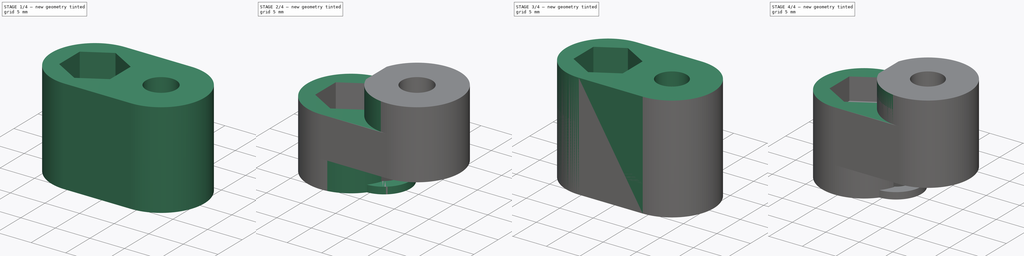
[diagram: build sequence overview — one tinted view per stage of 4, left to right]
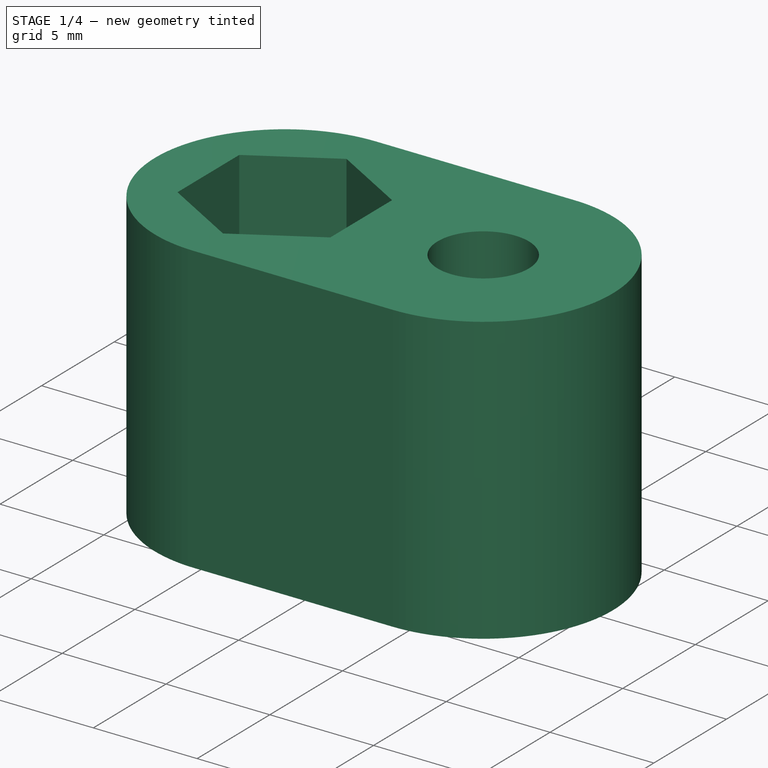
[diagram: stage 1 of 4 — iso view after this stage's code; geometry added in this stage tinted green]
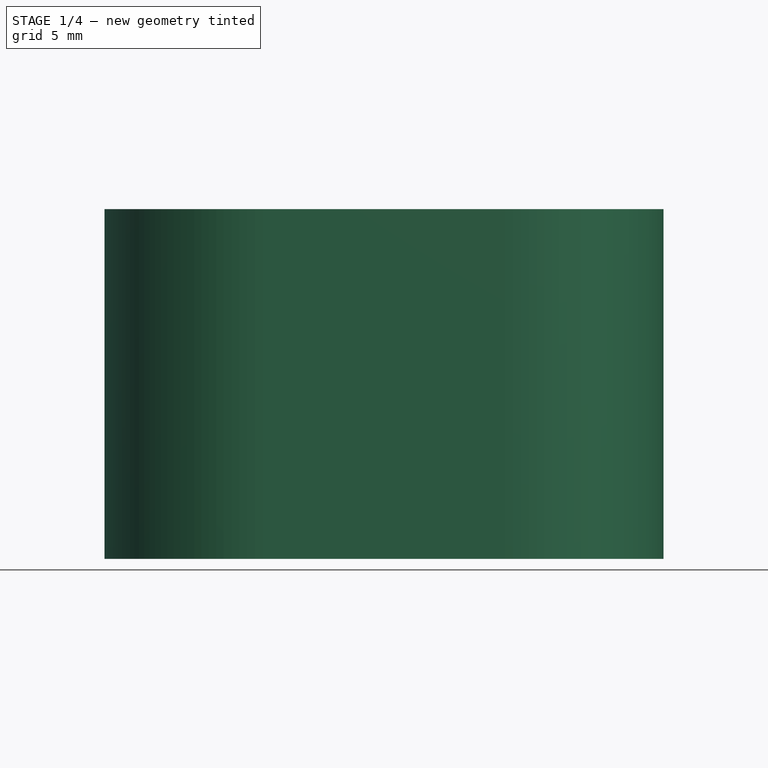
[diagram: stage 1 of 4 — front view after this stage's code; geometry added in this stage tinted green]
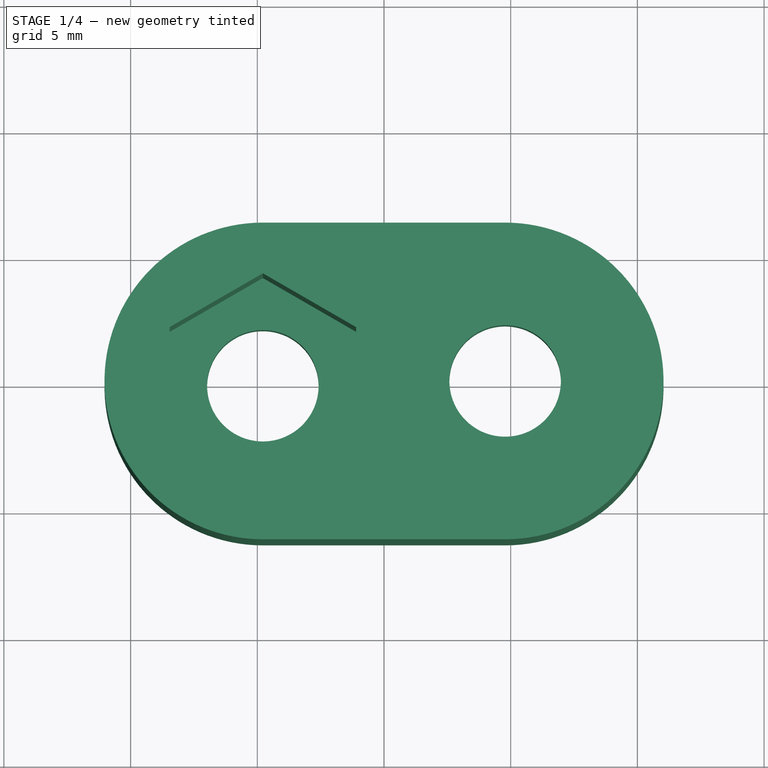
[diagram: stage 1 of 4 — top view after this stage's code; geometry added in this stage tinted green]
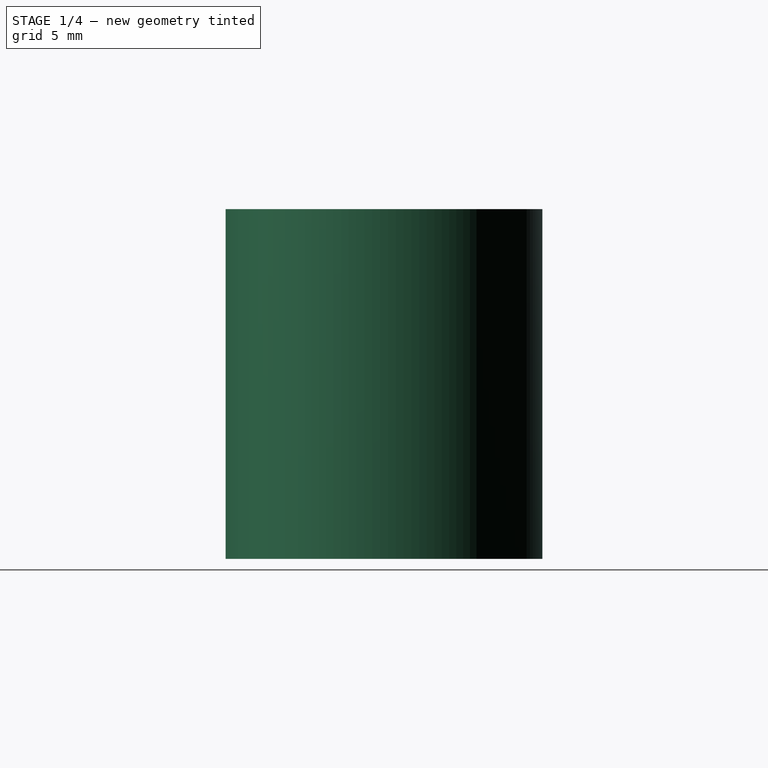
[diagram: stage 1 of 4 — right view after this stage's code; geometry added in this stage tinted green]
FCSTD DOCUMENT  (FreeCAD 0.18.4R)
Label: Silencer
License: All rights reserved
LicenseURL: http://en.wikipedia.org/wiki/All_rights_reserved
objects: Sketcher::SketchObject×13, PartDesign::Pocket×8, PartDesign::Pad×3, PartDesign::Body×3, Spreadsheet::Sheet×2, App::Part×1
note: 38 computed .brp shape members not serialized (recipe doc carries the construction recipe); baked Part::Feature solids carry a one-line shape summary decoded from their .brp

FEATURE [PartDesign::Body] Body001
  Group = -> [Sketch006,Pad001]
  Origin = -> Origin002
  Tip = -> Pad001
FEATURE [Sketcher::SketchObject] Sketch007  label="Template001"
  MapMode = 5
  Support = -> [XY_Plane001]
  expr: Constraints[38] = Params.NutDistanceH
  expr: Constraints[51] = Screws.M4Radius
  expr: Constraints[47] = Constraints.R1 + 2mm
  expr: Constraints.R1 = Screws.M4NutRadius
  sketch-geometry (20):
    g0: LineSegment StartX=-1.1 StartY=2.125 StartZ=0 EndX=-4.78061 EndY=4.25 EndZ=0
    g1: LineSegment StartX=-4.78061 StartY=4.25 StartZ=0 EndX=-8.46122 EndY=2.125 EndZ=0
    g2: LineSegment StartX=-8.46122 StartY=2.125 StartZ=0 EndX=-8.46122 EndY=-2.125 EndZ=0
    g3: LineSegment StartX=-8.46122 StartY=-2.125 StartZ=0 EndX=-4.78061 EndY=-4.25 EndZ=0
    g4: LineSegment StartX=-4.78061 StartY=-4.25 StartZ=0 EndX=-1.1 EndY=-2.125 EndZ=0
    g5: LineSegment StartX=-1.1 StartY=-2.125 StartZ=0 EndX=-1.1 EndY=2.125 EndZ=0
    g6: Circle CenterX=-4.78061 CenterY=0 CenterZ=0 NormalX=0 NormalY=0 NormalZ=1 AngleXU=0 Radius=4.25
    g7: LineSegment StartX=8.46122 StartY=-2.125 StartZ=0 EndX=8.46122 EndY=2.125 EndZ=0
    g8: LineSegment StartX=8.46122 StartY=2.125 StartZ=0 EndX=4.78061 EndY=4.25 EndZ=0
    g9: LineSegment StartX=4.78061 StartY=4.25 StartZ=0 EndX=1.1 EndY=2.125 EndZ=0
    g10: LineSegment StartX=1.1 StartY=2.125 StartZ=0 EndX=1.1 EndY=-2.125 EndZ=0
    g11: LineSegment StartX=1.1 StartY=-2.125 StartZ=0 EndX=4.78061 EndY=-4.25 EndZ=0
    g12: LineSegment StartX=4.78061 StartY=-4.25 StartZ=0 EndX=8.46122 EndY=-2.125 EndZ=0
    g13: Circle CenterX=4.78061 CenterY=0 CenterZ=0 NormalX=0 NormalY=0 NormalZ=1 AngleXU=0 Radius=4.25
    g14: ArcOfCircle CenterX=-4.78061 CenterY=0 CenterZ=0 NormalX=0 NormalY=0 NormalZ=1 AngleXU=0 Radius=6.25 StartAngle=1.5708 EndAngle=4.71239
    g15: ArcOfCircle CenterX=4.78061 CenterY=0 CenterZ=0 NormalX=0 NormalY=0 NormalZ=1 AngleXU=0 Radius=6.25 StartAngle=4.71239 EndAngle=7.85398
    g16: LineSegment StartX=-4.78061 StartY=-6.25 StartZ=0 EndX=4.78061 EndY=-6.25 EndZ=0
    g17: LineSegment StartX=-4.78061 StartY=6.25 StartZ=0 EndX=4.78061 EndY=6.25 EndZ=0
    g18: Circle CenterX=-4.78061 CenterY=0 CenterZ=0 NormalX=0 NormalY=0 NormalZ=1 AngleXU=0 Radius=2.2
    g19: Circle CenterX=4.78061 CenterY=0 CenterZ=0 NormalX=0 NormalY=0 NormalZ=1 AngleXU=0 Radius=2.2
  constraints (45):
    c: Coincident(g0,g1)
    c: Coincident(g1,g2)
    c: Coincident(g2,g3)
    c: Coincident(g3,g4)
    c: Coincident(g4,g5)
    c: Coincident(g5,g0)
    c: Equal(g0, g1-g5) x5
    c: PointOnObject(g0,g6)
    c: PointOnObject(g1,g6)
    c: PointOnObject(g2,g6)
    c: PointOnObject(g3,g6)
    c: PointOnObject(g4,g6)
    c: PointOnObject(g5,g6)
    c: Radius(g6) = 4.25  'R1'
    c: Vertical(g2)
    c: Coincident(g7,g8)
    c: Coincident(g8,g9)
    c: Coincident(g9,g10)
    c: Coincident(g10,g11)
    c: Coincident(g11,g12)
    c: Coincident(g12,g7)
    c: Equal(g7, g8-g12) x5
    c: PointOnObject(g7,g13)
    c: PointOnObject(g8,g13)
    c: PointOnObject(g9,g13)
    c: PointOnObject(g10,g13)
    c: PointOnObject(g11,g13)
    c: PointOnObject(g12,g13)
    c: Vertical(g10)
    c: Equal(g13,g6)
    c: DistanceX(g0,g9) = 2.2
    c: Tangent(g14,g17) = 1.5708
    c: Tangent(g14,g16) = -1.5708
    c: Tangent(g16,g15) = -1.5708
    c: Tangent(g17,g15) = 1.5708
    c: Horizontal(g16)
    c: Equal(g14,g15)
    c: Coincident(g14,g6)
    c: Coincident(g13,g15)
    c: Radius(g14) = 6.25
    c: Coincident(g18,g14)
    c: Coincident(g19,g15)
    c: Equal(g19,g18)
    c: Radius(g18) = 2.2
    c: Symmetric(g14,g15,g-1)
FEATURE [Sketcher::SketchObject] Sketch008
  ExternalGeometry = -> [Sketch007]
  MapMode = 5
  Support = -> [XY_Plane001]
  sketch-geometry (6):
    g0: ArcOfCircle CenterX=-4.78061 CenterY=0 CenterZ=0 NormalX=0 NormalY=0 NormalZ=1 AngleXU=0 Radius=6.25 StartAngle=1.5708 EndAngle=4.71239
    g1: ArcOfCircle CenterX=4.78061 CenterY=0 CenterZ=0 NormalX=0 NormalY=0 NormalZ=1 AngleXU=0 Radius=6.25 StartAngle=4.71239 EndAngle=7.85398
    g2: LineSegment StartX=-4.78061 StartY=-6.25 StartZ=0 EndX=4.78061 EndY=-6.25 EndZ=0
    g3: LineSegment StartX=-4.78061 StartY=6.25 StartZ=0 EndX=4.78061 EndY=6.25 EndZ=0
    g4: Circle CenterX=-4.78061 CenterY=0 CenterZ=0 NormalX=0 NormalY=0 NormalZ=1 AngleXU=0 Radius=2.2
    g5: Circle CenterX=4.78061 CenterY=0 CenterZ=0 NormalX=0 NormalY=0 NormalZ=1 AngleXU=0 Radius=2.2
  constraints (12):
    c: Tangent(g0,g3) = 1.5708
    c: Tangent(g0,g2) = -1.5708
    c: Tangent(g2,g1) = -1.5708
    c: Tangent(g3,g1) = 1.5708
    c: Horizontal(g2)
    c: Coincident(g0,g-6)
    c: Coincident(g1,g-5)
    c: Equal(g0,g-6)
    c: Coincident(g4,g0)
    c: Coincident(g5,g1)
    c: Equal(g5,g-4)
    c: Equal(g4,g-3)
FEATURE [PartDesign::Pad] Pad002
  Length = 13.8
  Length2 = 100
  Profile = -> Sketch008
  Type = 0
  expr: Length = Params.SurfaceThickness * 2 + Screws.M4NutHeight * 2 + Params.NutDistanceV
FEATURE [Sketcher::SketchObject] Sketch009
  AttachmentOffset = pos=(0,0,13.8) rot=(0,0,1;0rad)
  ExternalGeometry = -> [Sketch007]
  MapMode = 5
  Placement = pos=(0,0,13.8) rot=(0,0,1;0rad)
  Support = -> [XY_Plane001]
  expr: AttachmentOffset.Base.z = Pad002.Length
  sketch-geometry (7):
    g0: LineSegment StartX=-4.78061 StartY=4.25 StartZ=0 EndX=-8.46122 EndY=2.125 EndZ=0
    g1: LineSegment StartX=-8.46122 StartY=2.125 StartZ=0 EndX=-8.46122 EndY=-2.125 EndZ=0
    g2: LineSegment StartX=-8.46122 StartY=-2.125 StartZ=0 EndX=-4.78061 EndY=-4.25 EndZ=0
    g3: LineSegment StartX=-4.78061 StartY=-4.25 StartZ=0 EndX=-1.1 EndY=-2.125 EndZ=0
    g4: LineSegment StartX=-1.1 StartY=-2.125 StartZ=0 EndX=-1.1 EndY=2.125 EndZ=0
    g5: LineSegment StartX=-1.1 StartY=2.125 StartZ=0 EndX=-4.78061 EndY=4.25 EndZ=0
    g6: Circle [constr] CenterX=-4.78061 CenterY=0 CenterZ=0 NormalX=0 NormalY=0 NormalZ=1 AngleXU=0 Radius=4.25
  constraints (15):
    c: Coincident(g0,g1)
    c: Coincident(g1,g2)
    c: Coincident(g2,g3)
    c: Coincident(g3,g4)
    c: Coincident(g4,g5)
    c: Coincident(g5,g0)
    c: Equal(g0, g1-g5) x5
    c: PointOnObject(g0,g6)
    c: PointOnObject(g1,g6)
    c: PointOnObject(g2,g6)
    c: PointOnObject(g3,g6)
    c: PointOnObject(g4,g6)
    c: PointOnObject(g5,g6)
    c: Coincident(g6,g-3)
    c: Coincident(g0,g-4)
FEATURE [PartDesign::Pocket] Pocket004
  BaseFeature = -> Pad002
  Length = 10.8
  Length2 = 100
  Profile = -> Sketch009
  Type = 0
  expr: Length = Pad002.Length - Params.SurfaceThickness
FEATURE [Sketcher::SketchObject] Sketch010
  AttachmentOffset = pos=(0,0,10.8) rot=(0,0,1;0rad)
  ExternalGeometry = -> [Sketch007]
  MapMode = 5
  Placement = pos=(0,0,10.8) rot=(0,0,1;0rad)
  Support = -> [XY_Plane001]
  expr: AttachmentOffset.Base.z = Pad002.Length - Params.SurfaceThickness
  sketch-geometry (7):
    g0: LineSegment StartX=8.46122 StartY=2.125 StartZ=0 EndX=4.78061 EndY=4.25 EndZ=0
    g1: LineSegment StartX=4.78061 StartY=4.25 StartZ=0 EndX=1.1 EndY=2.125 EndZ=0
    g2: LineSegment StartX=1.1 StartY=2.125 StartZ=0 EndX=1.1 EndY=-2.125 EndZ=0
    g3: LineSegment StartX=1.1 StartY=-2.125 StartZ=0 EndX=4.78061 EndY=-4.25 EndZ=0
    g4: LineSegment StartX=4.78061 StartY=-4.25 StartZ=0 EndX=8.46122 EndY=-2.125 EndZ=0
    g5: LineSegment StartX=8.46122 StartY=-2.125 StartZ=0 EndX=8.46122 EndY=2.125 EndZ=0
    g6: Circle [constr] CenterX=4.78061 CenterY=0 CenterZ=0 NormalX=0 NormalY=0 NormalZ=1 AngleXU=0 Radius=4.25
  constraints (15):
    c: Coincident(g0,g1)
    c: Coincident(g1,g2)
    c: Coincident(g2,g3)
    c: Coincident(g3,g4)
    c: Coincident(g4,g5)
    c: Coincident(g5,g0)
    c: Equal(g0, g1-g5) x5
    c: PointOnObject(g0,g6)
    c: PointOnObject(g1,g6)
    c: PointOnObject(g2,g6)
    c: PointOnObject(g3,g6)
    c: PointOnObject(g4,g6)
    c: PointOnObject(g5,g6)
    c: Coincident(g6,g-3)
    c: Coincident(g5,g-4)
FEATURE [PartDesign::Pocket] Pocket005
  BaseFeature = -> Pocket004
  Length = 3.3
  Length2 = 100
  Profile = -> Sketch010
  Type = 1
  expr: Length = Screws.M4NutHeight
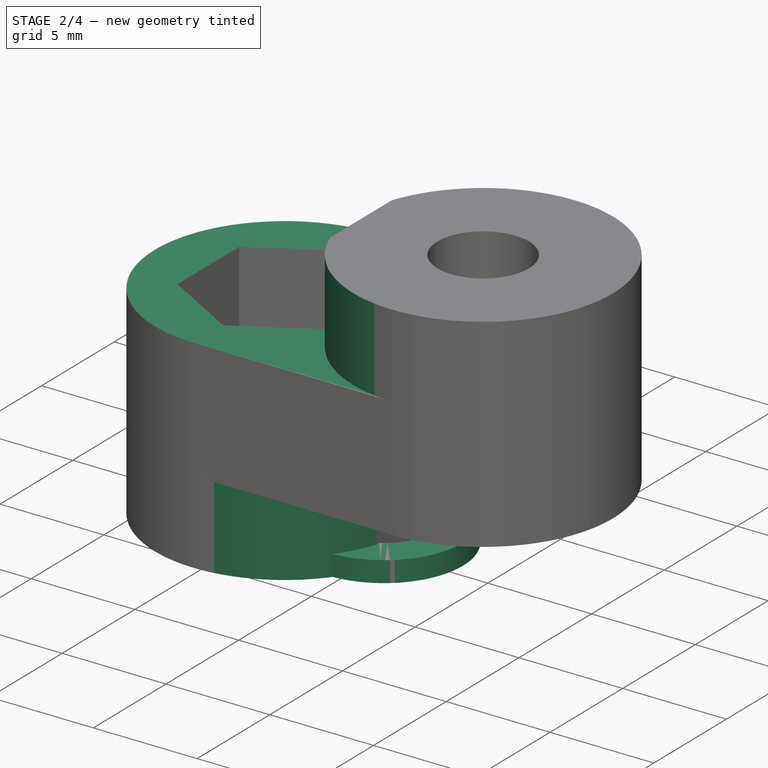
[diagram: stage 2 of 4 — iso view after this stage's code; geometry added in this stage tinted green]
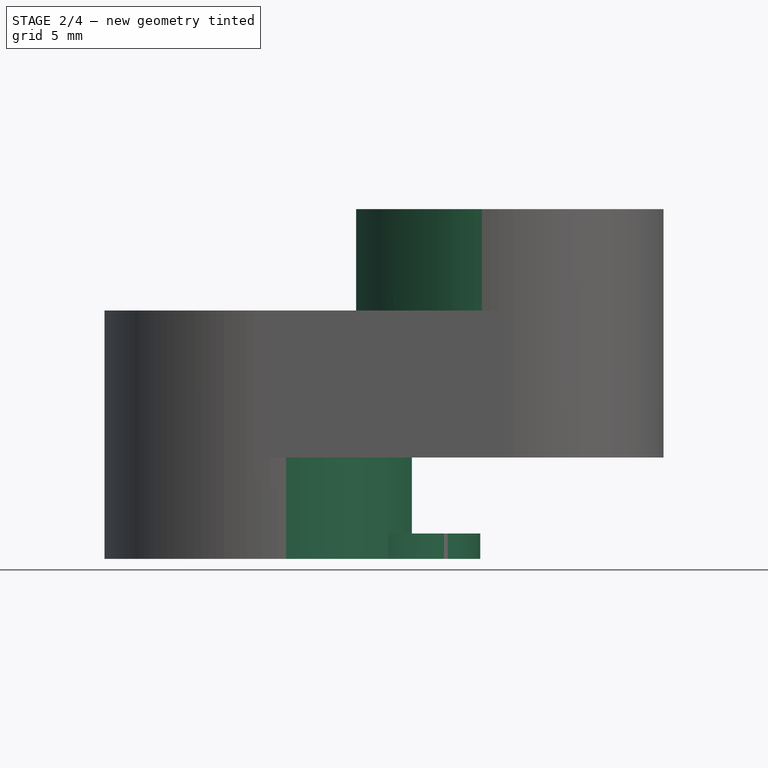
[diagram: stage 2 of 4 — front view after this stage's code; geometry added in this stage tinted green]
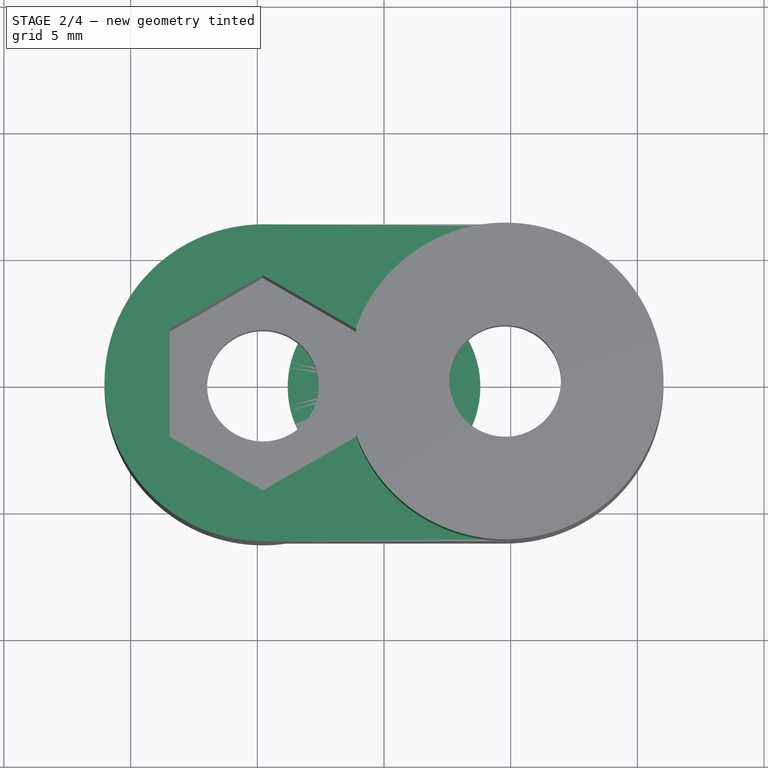
[diagram: stage 2 of 4 — top view after this stage's code; geometry added in this stage tinted green]
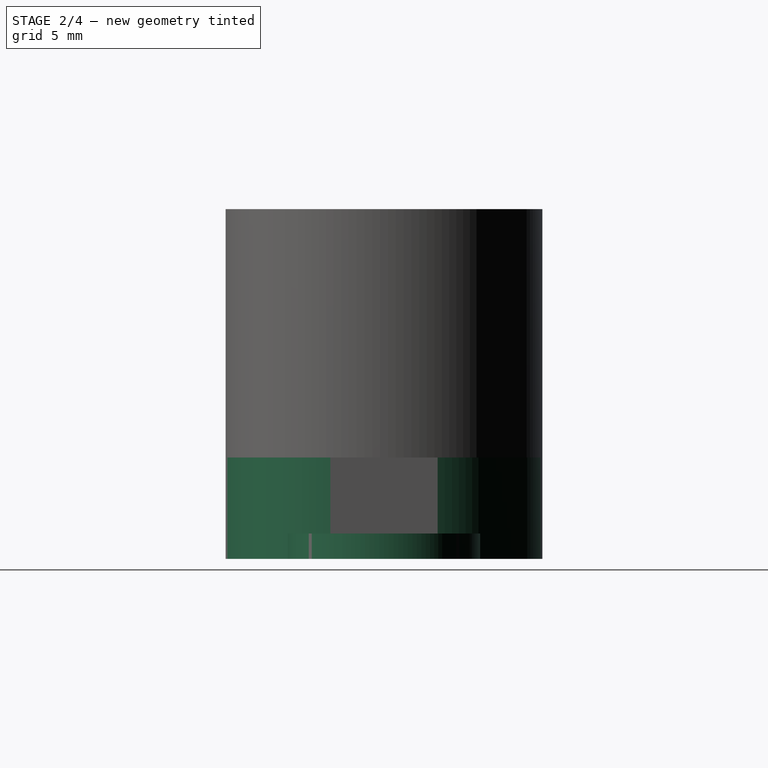
[diagram: stage 2 of 4 — right view after this stage's code; geometry added in this stage tinted green]
FEATURE [PartDesign::Body] Body
  Group = -> [Sketch,Sketch001,Pad,Sketch002,Pocket,Sketch003,Pocket001,Sketch004,Pocket002,Sketch005,Pocket003]
  Origin = -> Origin001
  Tip = -> Pocket003
FEATURE [App::Part] Part
  Group = -> [Body]
  Origin = -> Origin
FEATURE [Spreadsheet::Sheet] Spreadsheet  label="Params"
  cells = B2=NutDistanceV; C2(NutDistanceV)==1.2mm; B3=NutDistanceH; C3(NutDistanceH)==2.2mm; B4=NutGap; C4(NutGap)==4mm; B5=SurfaceThickness; C5(SurfaceThickness)==3mm
FEATURE [Sketcher::SketchObject] Sketch006
  MapMode = 5
  Support = -> [XY_Plane002]
  expr: Constraints[3] = Constraints.Ri + 1.6mm
  expr: Constraints.Ri = Screws.M4Radius
  sketch-geometry (2):
    g0: Circle CenterX=0 CenterY=0 CenterZ=0 NormalX=0 NormalY=0 NormalZ=1 AngleXU=0 Radius=2.2
    g1: Circle CenterX=0 CenterY=0 CenterZ=0 NormalX=0 NormalY=0 NormalZ=1 AngleXU=0 Radius=3.8
  constraints (4):
    c: Coincident(g0,g-1)
    c: Coincident(g1,g0)
    c: Radius(g0) = 2.2  'Ri'
    c: Radius(g1) = 3.8
FEATURE [PartDesign::Pad] Pad001
  Length = 1
  Length2 = 100
  Profile = -> Sketch006
  Type = 0
FEATURE [Sketcher::SketchObject] Sketch011
  AttachmentOffset = pos=(0,0,4) rot=(0,0,1;0rad)
  ExternalGeometry = -> [Sketch007]
  MapMode = 5
  Placement = pos=(0,0,4) rot=(0,0,1;0rad)
  Support = -> [XY_Plane001]
  expr: AttachmentOffset.Base.z = Params.NutGap
  sketch-geometry (4):
    g0: ArcOfCircle CenterX=4.78061 CenterY=2e-16 CenterZ=0 NormalX=0 NormalY=0 NormalZ=1 AngleXU=0 Radius=6.25 StartAngle=4.71239 EndAngle=7.85398
    g1: LineSegment StartX=4.78061 StartY=6.25 StartZ=0 EndX=-4.78061 EndY=6.25 EndZ=0
    g2: LineSegment StartX=-4.78061 StartY=-6.25 StartZ=0 EndX=4.78061 EndY=-6.25 EndZ=0
    g3: ArcOfCircle CenterX=-4.78061 CenterY=0 CenterZ=0 NormalX=0 NormalY=0 NormalZ=1 AngleXU=0 Radius=6.25 StartAngle=4.71239 EndAngle=7.85398
  constraints (10):
    c: Coincident(g0,g-3)
    c: Coincident(g0,g-5)
    c: Coincident(g0,g-6)
    c: Coincident(g1,g0)
    c: Coincident(g2,g0)
    c: Coincident(g2,g-6)
    c: Coincident(g1,g-5)
    c: Coincident(g3,g-7)
    c: Coincident(g3,g1)
    c: Coincident(g3,g2)
FEATURE [PartDesign::Pocket] Pocket006
  BaseFeature = -> Pocket005
  Length = 5
  Length2 = 100
  Profile = -> Sketch011
  Type = 1
FEATURE [Sketcher::SketchObject] Sketch012
  AttachmentOffset = pos=(0,0,13.8) rot=(0,0,1;0rad)
  ExternalGeometry = -> [Sketch007]
  MapMode = 5
  Placement = pos=(0,0,13.8) rot=(0,0,1;0rad)
  Support = -> [XY_Plane002]
  expr: AttachmentOffset.Base.z = Pad002.Length
  sketch-geometry (4):
    g0: ArcOfCircle CenterX=-4.78061 CenterY=0 CenterZ=0 NormalX=0 NormalY=0 NormalZ=1 AngleXU=0 Radius=6.25 StartAngle=1.5708 EndAngle=4.71239
    g1: LineSegment StartX=-4.78061 StartY=6.25 StartZ=0 EndX=4.78061 EndY=6.25 EndZ=0
    g2: LineSegment StartX=-4.78061 StartY=-6.25 StartZ=0 EndX=4.78061 EndY=-6.25 EndZ=0
    g3: ArcOfCircle CenterX=4.78061 CenterY=0 CenterZ=0 NormalX=0 NormalY=0 NormalZ=1 AngleXU=0 Radius=6.25 StartAngle=1.5708 EndAngle=4.71239
  constraints (10):
    c: Coincident(g0,g-3)
    c: Coincident(g0,g-4)
    c: Coincident(g0,g-5)
    c: Coincident(g1,g0)
    c: Coincident(g1,g-4)
    c: Coincident(g2,g0)
    c: Coincident(g2,g-5)
    c: Coincident(g3,g-6)
    c: Coincident(g3,g1)
    c: Coincident(g3,g2)
FEATURE [PartDesign::Pocket] Pocket007
  BaseFeature = -> Pocket006
  Length = 4
  Length2 = 100
  Profile = -> Sketch012
  Type = 0
  expr: Length = Params.NutGap
FEATURE [PartDesign::Body] Body002
  Group = -> [Sketch007,Sketch008,Pad002,Sketch009,Pocket004,Sketch010,Pocket005,Sketch011,Pocket006,Sketch012,Pocket007]
  Origin = -> Origin003
  Tip = -> Pocket007
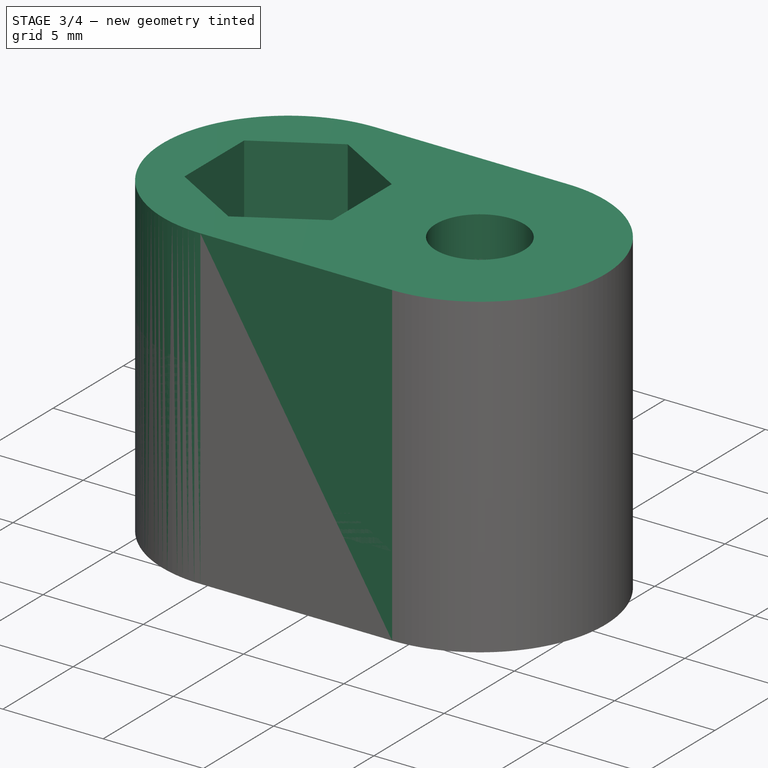
[diagram: stage 3 of 4 — iso view after this stage's code; geometry added in this stage tinted green]
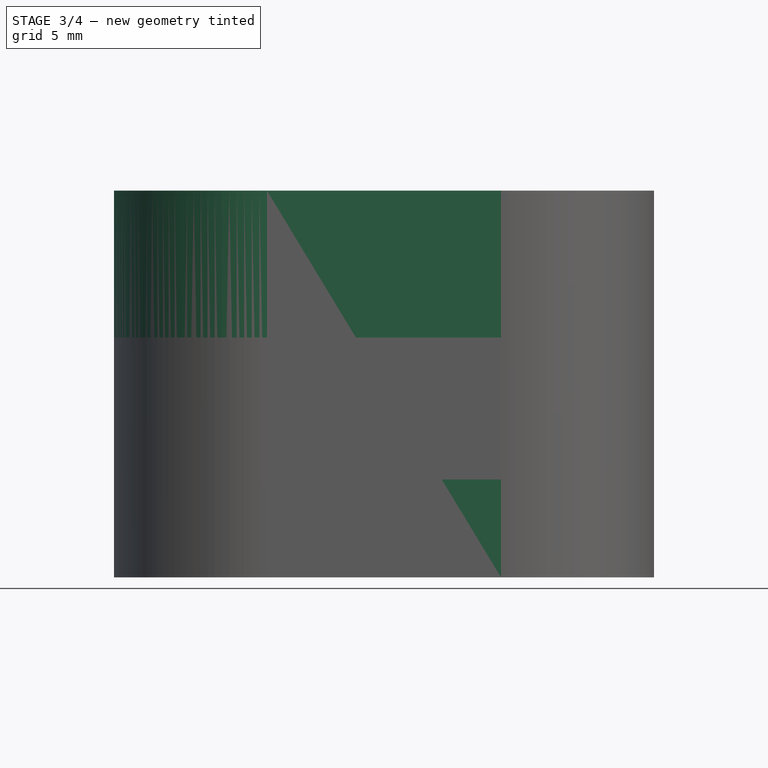
[diagram: stage 3 of 4 — front view after this stage's code; geometry added in this stage tinted green]
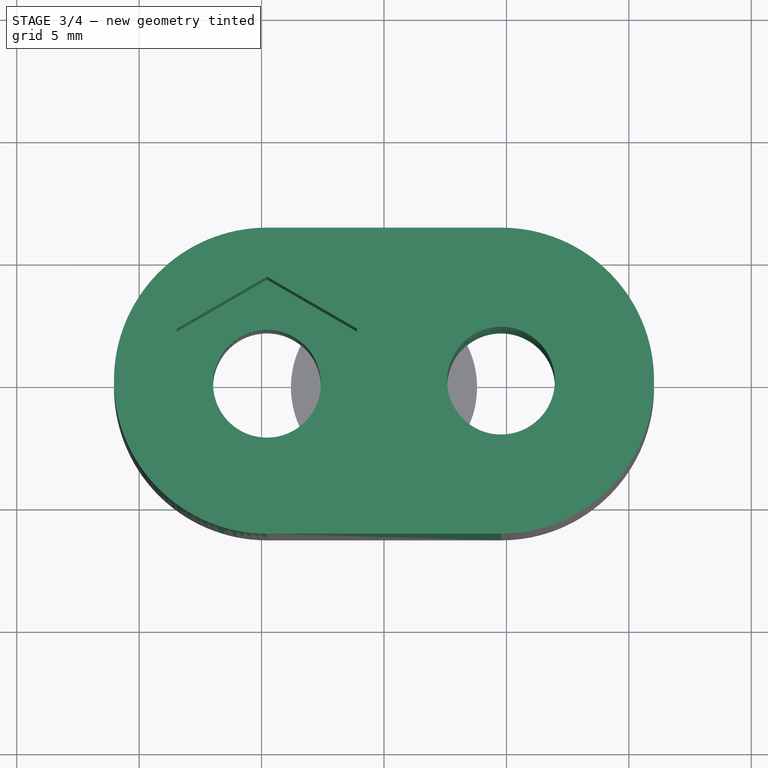
[diagram: stage 3 of 4 — top view after this stage's code; geometry added in this stage tinted green]
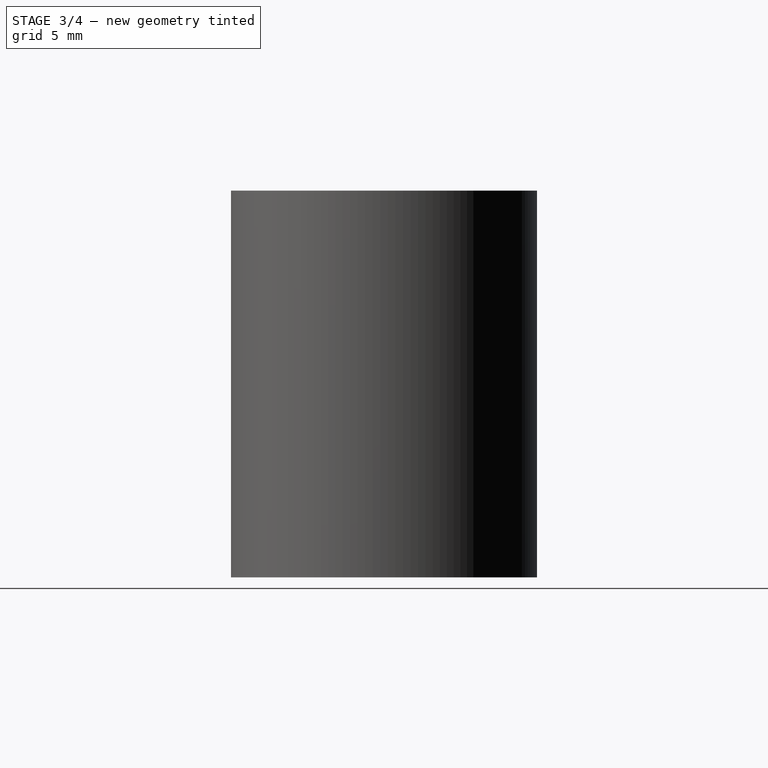
[diagram: stage 3 of 4 — right view after this stage's code; geometry added in this stage tinted green]
FEATURE [Sketcher::SketchObject] Sketch  label="Template"
  MapMode = 5
  Support = -> [XY_Plane001]
  expr: Constraints[38] = Params.NutDistanceH
  expr: Constraints[51] = Screws.M4Radius
  expr: Constraints[47] = Constraints.R1 + 2mm
  expr: Constraints.R1 = Screws.M4NutRadius
  sketch-geometry (20):
    g0: LineSegment StartX=-1.1 StartY=2.125 StartZ=0 EndX=-4.78061 EndY=4.25 EndZ=0
    g1: LineSegment StartX=-4.78061 StartY=4.25 StartZ=0 EndX=-8.46122 EndY=2.125 EndZ=0
    g2: LineSegment StartX=-8.46122 StartY=2.125 StartZ=0 EndX=-8.46122 EndY=-2.125 EndZ=0
    g3: LineSegment StartX=-8.46122 StartY=-2.125 StartZ=0 EndX=-4.78061 EndY=-4.25 EndZ=0
    g4: LineSegment StartX=-4.78061 StartY=-4.25 StartZ=0 EndX=-1.1 EndY=-2.125 EndZ=0
    g5: LineSegment StartX=-1.1 StartY=-2.125 StartZ=0 EndX=-1.1 EndY=2.125 EndZ=0
    g6: Circle CenterX=-4.78061 CenterY=1e-16 CenterZ=0 NormalX=0 NormalY=0 NormalZ=1 AngleXU=0 Radius=4.25
    g7: LineSegment StartX=8.46122 StartY=-2.125 StartZ=0 EndX=8.46122 EndY=2.125 EndZ=0
    g8: LineSegment StartX=8.46122 StartY=2.125 StartZ=0 EndX=4.78061 EndY=4.25 EndZ=0
    g9: LineSegment StartX=4.78061 StartY=4.25 StartZ=0 EndX=1.1 EndY=2.125 EndZ=0
    g10: LineSegment StartX=1.1 StartY=2.125 StartZ=0 EndX=1.1 EndY=-2.125 EndZ=0
    g11: LineSegment StartX=1.1 StartY=-2.125 StartZ=0 EndX=4.78061 EndY=-4.25 EndZ=0
    g12: LineSegment StartX=4.78061 StartY=-4.25 StartZ=0 EndX=8.46122 EndY=-2.125 EndZ=0
    g13: Circle CenterX=4.78061 CenterY=-1e-16 CenterZ=0 NormalX=0 NormalY=0 NormalZ=1 AngleXU=0 Radius=4.25
    g14: ArcOfCircle CenterX=-4.78061 CenterY=1e-16 CenterZ=0 NormalX=0 NormalY=0 NormalZ=1 AngleXU=0 Radius=6.25 StartAngle=1.5708 EndAngle=4.71239
    g15: ArcOfCircle CenterX=4.78061 CenterY=-1e-16 CenterZ=0 NormalX=0 NormalY=0 NormalZ=1 AngleXU=0 Radius=6.25 StartAngle=4.71239 EndAngle=7.85398
    g16: LineSegment StartX=-4.78061 StartY=-6.25 StartZ=0 EndX=4.78061 EndY=-6.25 EndZ=0
    g17: LineSegment StartX=-4.78061 StartY=6.25 StartZ=0 EndX=4.78061 EndY=6.25 EndZ=0
    g18: Circle CenterX=-4.78061 CenterY=1e-16 CenterZ=0 NormalX=0 NormalY=0 NormalZ=1 AngleXU=0 Radius=2.2
    g19: Circle CenterX=4.78061 CenterY=-1e-16 CenterZ=0 NormalX=0 NormalY=0 NormalZ=1 AngleXU=0 Radius=2.2
  constraints (45):
    c: Coincident(g0,g1)
    c: Coincident(g1,g2)
    c: Coincident(g2,g3)
    c: Coincident(g3,g4)
    c: Coincident(g4,g5)
    c: Coincident(g5,g0)
    c: Equal(g0, g1-g5) x5
    c: PointOnObject(g0,g6)
    c: PointOnObject(g1,g6)
    c: PointOnObject(g2,g6)
    c: PointOnObject(g3,g6)
    c: PointOnObject(g4,g6)
    c: PointOnObject(g5,g6)
    c: Radius(g6) = 4.25  'R1'
    c: Vertical(g2)
    c: Coincident(g7,g8)
    c: Coincident(g8,g9)
    c: Coincident(g9,g10)
    c: Coincident(g10,g11)
    c: Coincident(g11,g12)
    c: Coincident(g12,g7)
    c: Equal(g7, g8-g12) x5
    c: PointOnObject(g7,g13)
    c: PointOnObject(g8,g13)
    c: PointOnObject(g9,g13)
    c: PointOnObject(g10,g13)
    c: PointOnObject(g11,g13)
    c: PointOnObject(g12,g13)
    c: Vertical(g10)
    c: Equal(g13,g6)
    c: DistanceX(g0,g9) = 2.2
    c: Tangent(g14,g17) = 1.5708
    c: Tangent(g14,g16) = -1.5708
    c: Tangent(g16,g15) = -1.5708
    c: Tangent(g17,g15) = 1.5708
    c: Horizontal(g16)
    c: Equal(g14,g15)
    c: Coincident(g14,g6)
    c: Coincident(g13,g15)
    c: Radius(g14) = 6.25
    c: Coincident(g18,g14)
    c: Coincident(g19,g15)
    c: Equal(g19,g18)
    c: Radius(g18) = 2.2
    c: Symmetric(g14,g15,g-1)
FEATURE [Spreadsheet::Sheet] Spreadsheet001  label="Screws"
  cells = B2=M3Radius; C2(M3Radius)==1.75mm; B3=M3HeadRadius; C3(M3HeadRadius)==2.95mm; B4=M3HeadHeight; C4(M3HeadHeight)==2.95mm; B5=M3WasherRadius; C5(M3WasherRadius)==3.7mm; B6=M3WasherHeight; C6(M3WasherHeight)==0.5mm; B7=M3NutRadius; C7(M3NutRadius)==3.4mm; B8=M3NutHeight; C8(M3NutHeight)==2.75mm; B9=M3NylocNutHeight; C9(M3NylocNutHeight)==4.1mm; B10=M3NutDuctWidth; C10(M3NutDuctWidth)==5.85mm; B11=M4Radius; C11(M4Radius)==2.2mm; B12=M4HeadRadius; C12(M4HeadRadius)==3.75mm; B13=M4HeadHeight; C13(M4HeadHeight)==4mm; B14=M4WasherRadius; C14(M4WasherRadius)==4.7mm; B15=M4NutRadius; C15(M4NutRadius)==4.25mm; B16=M4NutHeight; C16(M4NutHeight)==3.3mm; B17=M4NutDuctWidth; C17(M4NutDuctWidth)==7.1mm; B18=M5Radius; C18(M5Radius)==2.66mm; B19=M5HeadRadius; C19(M5HeadRadius)==4.5mm; B20=M5HeadHeight; C20(M5HeadHeight)==5mm; B21=M5NutRadius; C21(M5NutRadius)==4.75mm; B22=M5NutHeight; C22(M5NutHeight)==4mm; B24=M6Radius; C24(M6Radius)==3.15mm; B25=M6HeadRadius; C25(M6HeadRadius)==5.5mm; B32=
FEATURE [Sketcher::SketchObject] Sketch001
  ExternalGeometry = -> [Sketch]
  MapMode = 5
  Support = -> [XY_Plane001]
  sketch-geometry (6):
    g0: ArcOfCircle CenterX=-4.78061 CenterY=1e-16 CenterZ=0 NormalX=0 NormalY=0 NormalZ=1 AngleXU=0 Radius=6.25 StartAngle=1.5708 EndAngle=4.71239
    g1: ArcOfCircle CenterX=4.78061 CenterY=-1e-16 CenterZ=0 NormalX=0 NormalY=0 NormalZ=1 AngleXU=0 Radius=6.25 StartAngle=4.71239 EndAngle=7.85398
    g2: LineSegment StartX=-4.78061 StartY=-6.25 StartZ=0 EndX=4.78061 EndY=-6.25 EndZ=0
    g3: LineSegment StartX=-4.78061 StartY=6.25 StartZ=0 EndX=4.78061 EndY=6.25 EndZ=0
    g4: Circle CenterX=-4.78061 CenterY=1e-16 CenterZ=0 NormalX=0 NormalY=0 NormalZ=1 AngleXU=0 Radius=2.2
    g5: Circle CenterX=4.78061 CenterY=-1e-16 CenterZ=0 NormalX=0 NormalY=0 NormalZ=1 AngleXU=0 Radius=2.2
  constraints (12):
    c: Tangent(g0,g3) = 1.5708
    c: Tangent(g0,g2) = -1.5708
    c: Tangent(g2,g1) = -1.5708
    c: Tangent(g3,g1) = 1.5708
    c: Horizontal(g2)
    c: Coincident(g0,g-6)
    c: Coincident(g1,g-5)
    c: Equal(g0,g-6)
    c: Coincident(g4,g0)
    c: Coincident(g5,g1)
    c: Equal(g5,g-4)
    c: Equal(g4,g-3)
FEATURE [PartDesign::Pad] Pad
  Length = 15.8
  Length2 = 100
  Profile = -> Sketch001
  Type = 0
  expr: Length = Screws.M4NutHeight * 2 + Params.NutDistanceV + Params.NutGap * 2
FEATURE [Sketcher::SketchObject] Sketch002
  AttachmentOffset = pos=(0,0,15.8) rot=(0,0,1;0rad)
  ExternalGeometry = -> [Sketch]
  MapMode = 5
  Placement = pos=(0,0,15.8) rot=(0,0,1;0rad)
  Support = -> [XY_Plane001]
  expr: AttachmentOffset.Base.z = Pad.Length
  sketch-geometry (7):
    g0: LineSegment StartX=-4.78061 StartY=4.25 StartZ=0 EndX=-8.46122 EndY=2.125 EndZ=0
    g1: LineSegment StartX=-8.46122 StartY=2.125 StartZ=0 EndX=-8.46122 EndY=-2.125 EndZ=0
    g2: LineSegment StartX=-8.46122 StartY=-2.125 StartZ=0 EndX=-4.78061 EndY=-4.25 EndZ=0
    g3: LineSegment StartX=-4.78061 StartY=-4.25 StartZ=0 EndX=-1.1 EndY=-2.125 EndZ=0
    g4: LineSegment StartX=-1.1 StartY=-2.125 StartZ=0 EndX=-1.1 EndY=2.125 EndZ=0
    g5: LineSegment StartX=-1.1 StartY=2.125 StartZ=0 EndX=-4.78061 EndY=4.25 EndZ=0
    g6: Circle [constr] CenterX=-4.78061 CenterY=1e-16 CenterZ=0 NormalX=0 NormalY=0 NormalZ=1 AngleXU=0 Radius=4.25
  constraints (15):
    c: Coincident(g0,g1)
    c: Coincident(g1,g2)
    c: Coincident(g2,g3)
    c: Coincident(g3,g4)
    c: Coincident(g4,g5)
    c: Coincident(g5,g0)
    c: Equal(g0, g1-g5) x5
    c: PointOnObject(g0,g6)
    c: PointOnObject(g1,g6)
    c: PointOnObject(g2,g6)
    c: PointOnObject(g3,g6)
    c: PointOnObject(g4,g6)
    c: PointOnObject(g5,g6)
    c: Coincident(g6,g-3)
    c: Coincident(g0,g-4)
FEATURE [PartDesign::Pocket] Pocket
  BaseFeature = -> Pad
  Length = 7.3
  Length2 = 100
  Profile = -> Sketch002
  Type = 0
  expr: Length = Screws.M4NutHeight + Params.NutGap
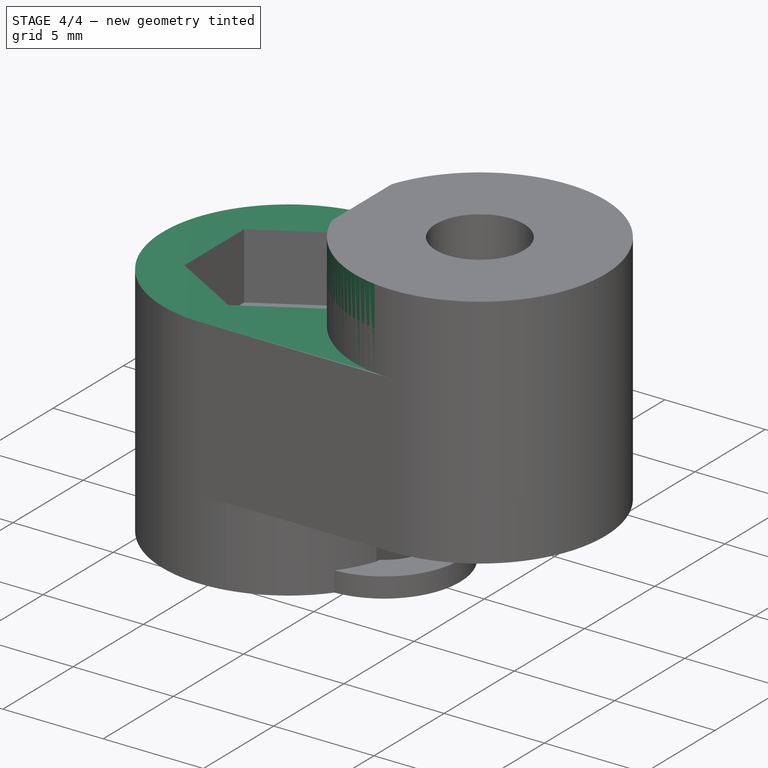
[diagram: stage 4 of 4 — iso view after this stage's code; geometry added in this stage tinted green]
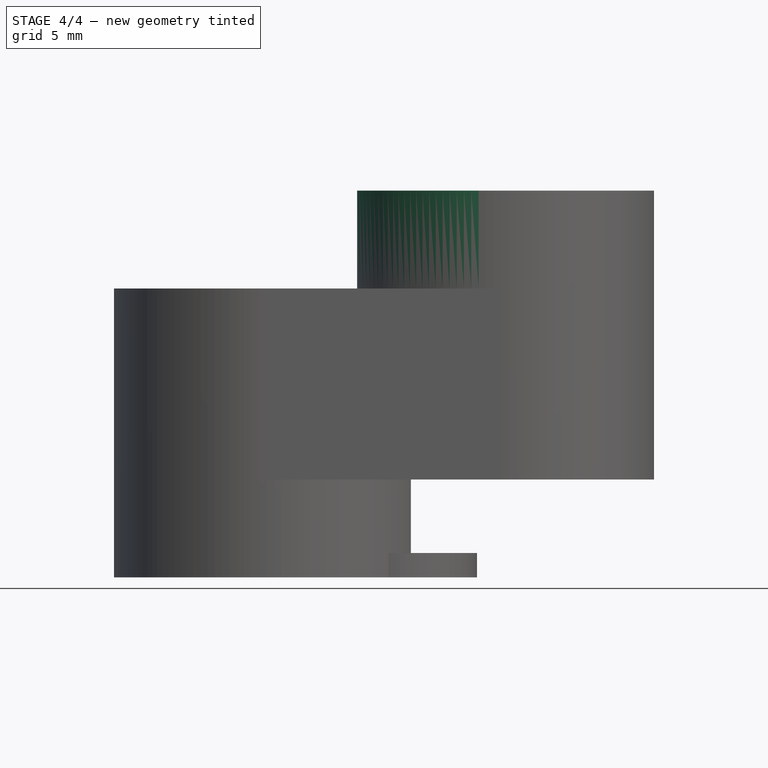
[diagram: stage 4 of 4 — front view after this stage's code; geometry added in this stage tinted green]
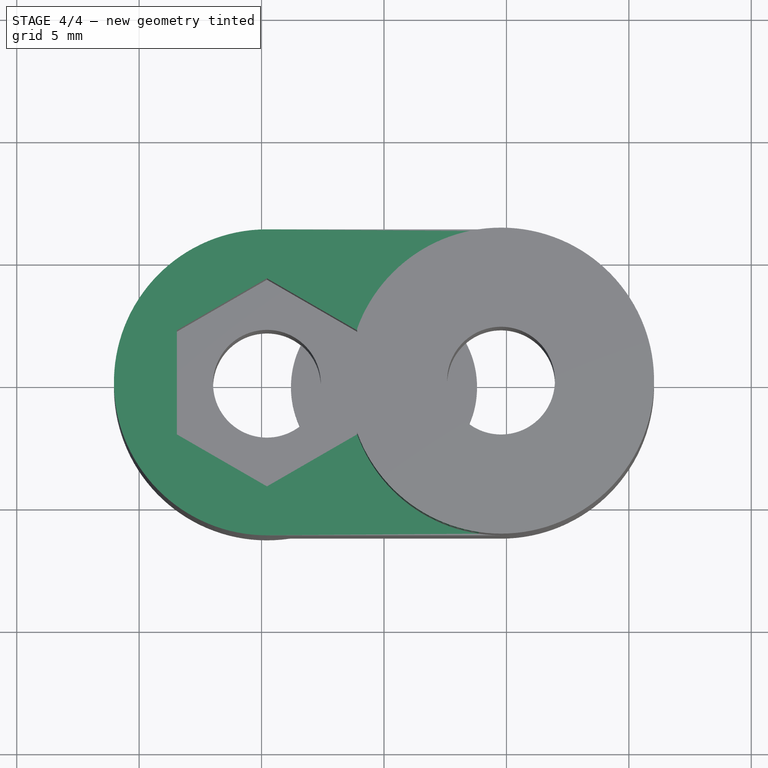
[diagram: stage 4 of 4 — top view after this stage's code; geometry added in this stage tinted green]
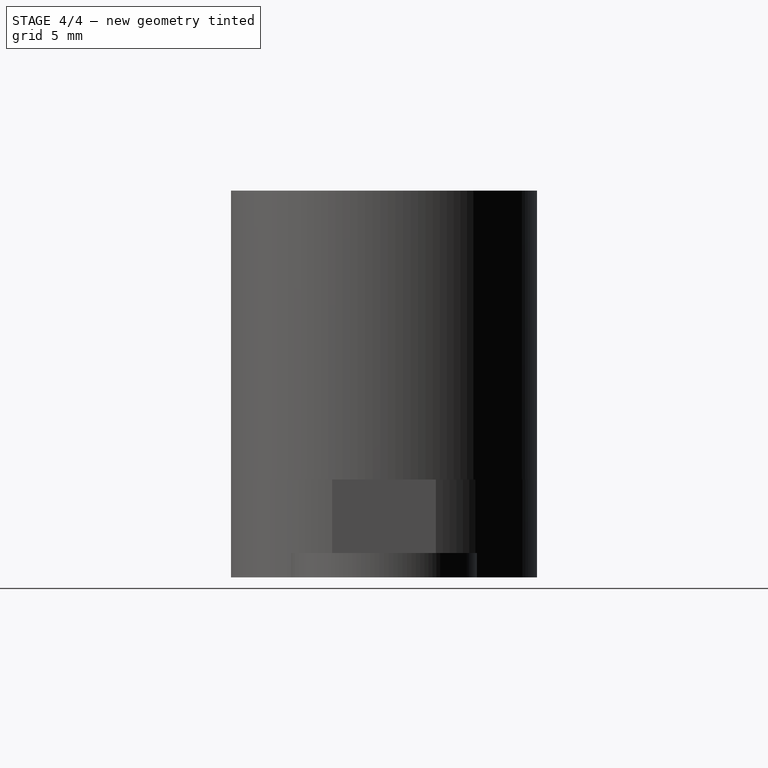
[diagram: stage 4 of 4 — right view after this stage's code; geometry added in this stage tinted green]
FEATURE [Sketcher::SketchObject] Sketch003
  AttachmentOffset = pos=(0,0,7.3) rot=(0,0,1;0rad)
  ExternalGeometry = -> [Sketch]
  MapMode = 5
  Placement = pos=(0,0,7.3) rot=(0,0,1;0rad)
  Support = -> [XY_Plane001]
  expr: AttachmentOffset.Base.z = Screws.M4NutHeight + Params.NutGap
  sketch-geometry (7):
    g0: LineSegment StartX=8.46122 StartY=2.125 StartZ=0 EndX=4.78061 EndY=4.25 EndZ=0
    g1: LineSegment StartX=4.78061 StartY=4.25 StartZ=0 EndX=1.1 EndY=2.125 EndZ=0
    g2: LineSegment StartX=1.1 StartY=2.125 StartZ=0 EndX=1.1 EndY=-2.125 EndZ=0
    g3: LineSegment StartX=1.1 StartY=-2.125 StartZ=0 EndX=4.78061 EndY=-4.25 EndZ=0
    g4: LineSegment StartX=4.78061 StartY=-4.25 StartZ=0 EndX=8.46122 EndY=-2.125 EndZ=0
    g5: LineSegment StartX=8.46122 StartY=-2.125 StartZ=0 EndX=8.46122 EndY=2.125 EndZ=0
    g6: Circle [constr] CenterX=4.78061 CenterY=-1e-16 CenterZ=0 NormalX=0 NormalY=0 NormalZ=1 AngleXU=0 Radius=4.25
  constraints (15):
    c: Coincident(g0,g1)
    c: Coincident(g1,g2)
    c: Coincident(g2,g3)
    c: Coincident(g3,g4)
    c: Coincident(g4,g5)
    c: Coincident(g5,g0)
    c: Equal(g0, g1-g5) x5
    c: PointOnObject(g0,g6)
    c: PointOnObject(g1,g6)
    c: PointOnObject(g2,g6)
    c: PointOnObject(g3,g6)
    c: PointOnObject(g4,g6)
    c: PointOnObject(g5,g6)
    c: Coincident(g6,g-3)
    c: Coincident(g5,g-4)
FEATURE [PartDesign::Pocket] Pocket001
  BaseFeature = -> Pocket
  Length = 3.3
  Length2 = 100
  Profile = -> Sketch003
  Type = 1
  expr: Length = Screws.M4NutHeight
FEATURE [Sketcher::SketchObject] Sketch004
  AttachmentOffset = pos=(0,0,4) rot=(0,0,1;0rad)
  ExternalGeometry = -> [Sketch]
  MapMode = 5
  Placement = pos=(0,0,4) rot=(0,0,1;0rad)
  Support = -> [XY_Plane001]
  expr: AttachmentOffset.Base.z = Params.NutGap
  sketch-geometry (4):
    g0: ArcOfCircle CenterX=4.78061 CenterY=-1e-16 CenterZ=0 NormalX=0 NormalY=0 NormalZ=1 AngleXU=0 Radius=6.25 StartAngle=4.71239 EndAngle=7.85398
    g1: LineSegment StartX=4.78061 StartY=6.25 StartZ=0 EndX=-4.78061 EndY=6.25 EndZ=0
    g2: LineSegment StartX=-4.78061 StartY=-6.25 StartZ=0 EndX=4.78061 EndY=-6.25 EndZ=0
    g3: ArcOfCircle CenterX=-4.78061 CenterY=1e-16 CenterZ=0 NormalX=0 NormalY=0 NormalZ=1 AngleXU=0 Radius=6.25 StartAngle=4.71239 EndAngle=7.85398
  constraints (10):
    c: Coincident(g0,g-3)
    c: Coincident(g0,g-5)
    c: Coincident(g0,g-6)
    c: Coincident(g1,g0)
    c: Coincident(g2,g0)
    c: Coincident(g2,g-6)
    c: Coincident(g1,g-5)
    c: Coincident(g3,g-7)
    c: Coincident(g3,g1)
    c: Coincident(g3,g2)
FEATURE [PartDesign::Pocket] Pocket002
  BaseFeature = -> Pocket001
  Length = 5
  Length2 = 100
  Profile = -> Sketch004
  Type = 1
FEATURE [Sketcher::SketchObject] Sketch005
  AttachmentOffset = pos=(0,0,15.8) rot=(0,0,1;0rad)
  ExternalGeometry = -> [Sketch]
  MapMode = 5
  Placement = pos=(0,0,15.8) rot=(0,0,1;0rad)
  Support = -> [XY_Plane001]
  expr: AttachmentOffset.Base.z = Pad.Length
  sketch-geometry (4):
    g0: ArcOfCircle CenterX=-4.78061 CenterY=1e-16 CenterZ=0 NormalX=0 NormalY=0 NormalZ=1 AngleXU=0 Radius=6.25 StartAngle=1.5708 EndAngle=4.71239
    g1: LineSegment StartX=-4.78061 StartY=6.25 StartZ=0 EndX=4.78061 EndY=6.25 EndZ=0
    g2: LineSegment StartX=-4.78061 StartY=-6.25 StartZ=0 EndX=4.78061 EndY=-6.25 EndZ=0
    g3: ArcOfCircle CenterX=4.78061 CenterY=-1e-16 CenterZ=0 NormalX=0 NormalY=0 NormalZ=1 AngleXU=0 Radius=6.25 StartAngle=1.5708 EndAngle=4.71239
  constraints (10):
    c: Coincident(g0,g-3)
    c: Coincident(g0,g-4)
    c: Coincident(g0,g-5)
    c: Coincident(g1,g0)
    c: Coincident(g1,g-4)
    c: Coincident(g2,g0)
    c: Coincident(g2,g-5)
    c: Coincident(g3,g-6)
    c: Coincident(g3,g1)
    c: Coincident(g3,g2)
FEATURE [PartDesign::Pocket] Pocket003
  BaseFeature = -> Pocket002
  Length = 4
  Length2 = 100
  Profile = -> Sketch005
  Type = 0
  expr: Length = Params.NutGap
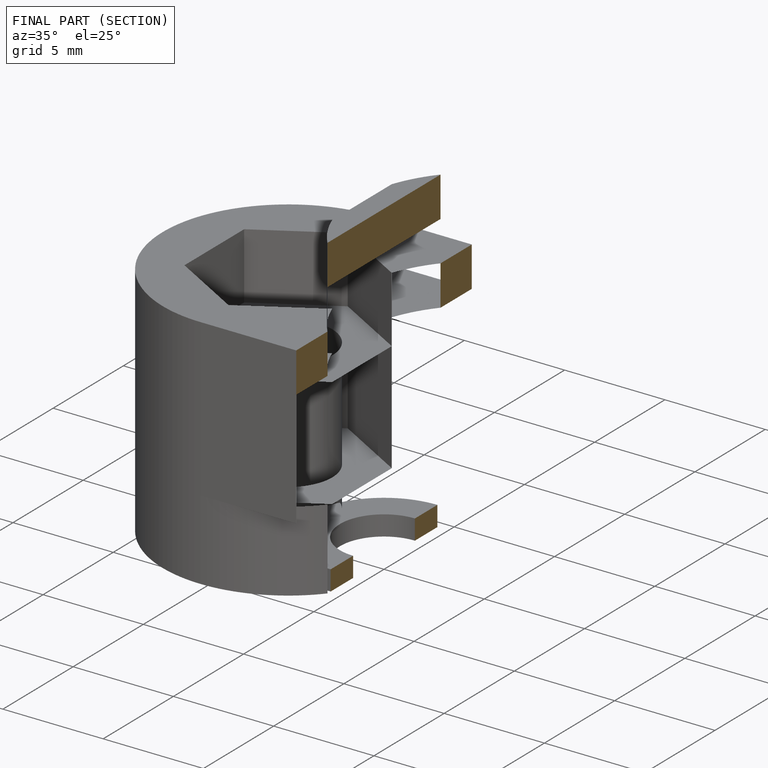
[diagram: finished part — half-section view (interior)]
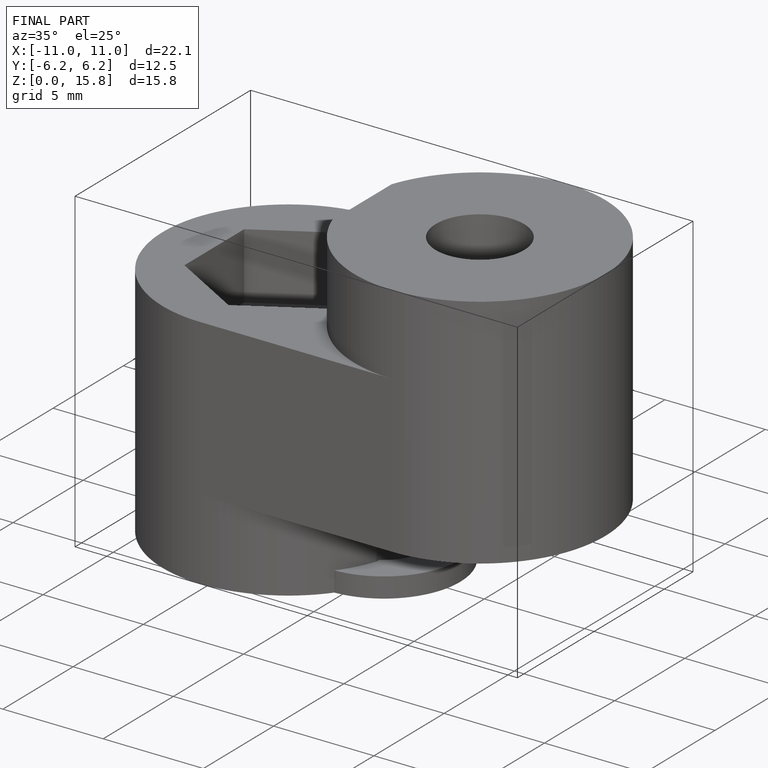
[diagram: finished part — iso view with bounding-box wireframe]
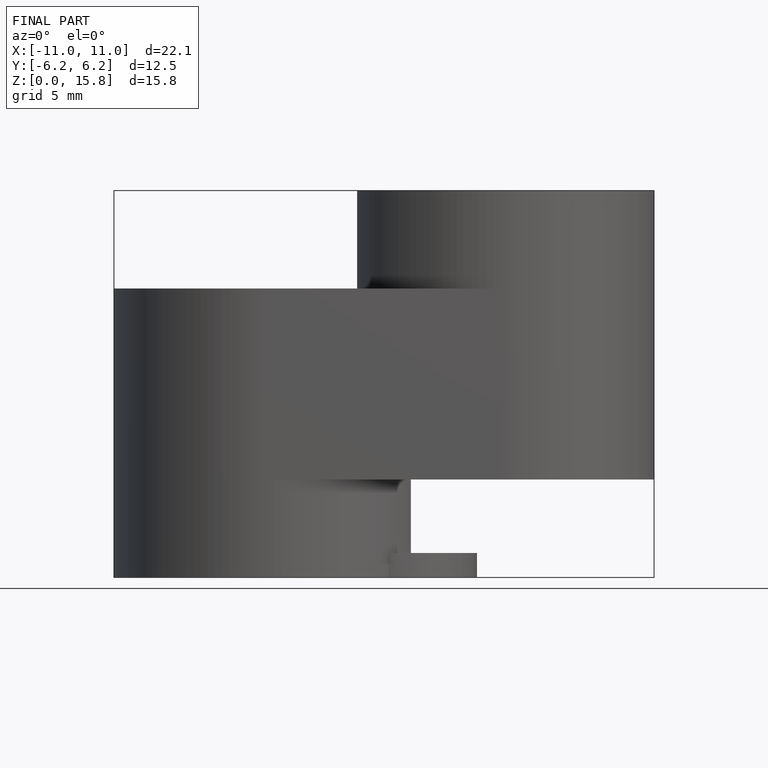
[diagram: finished part — front view with bounding-box wireframe]
